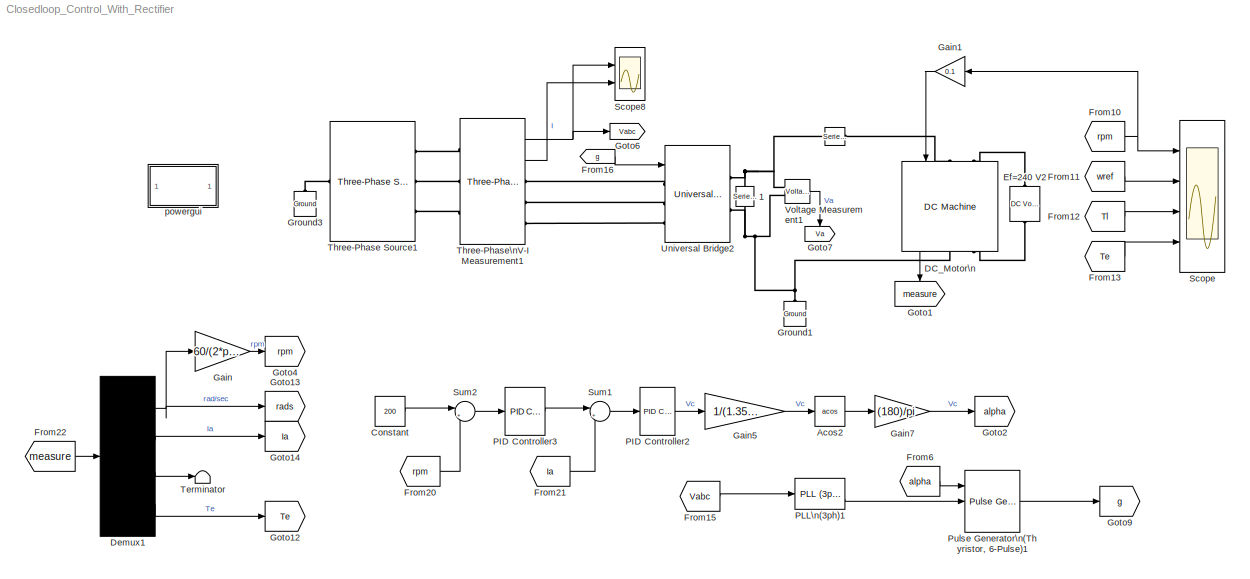
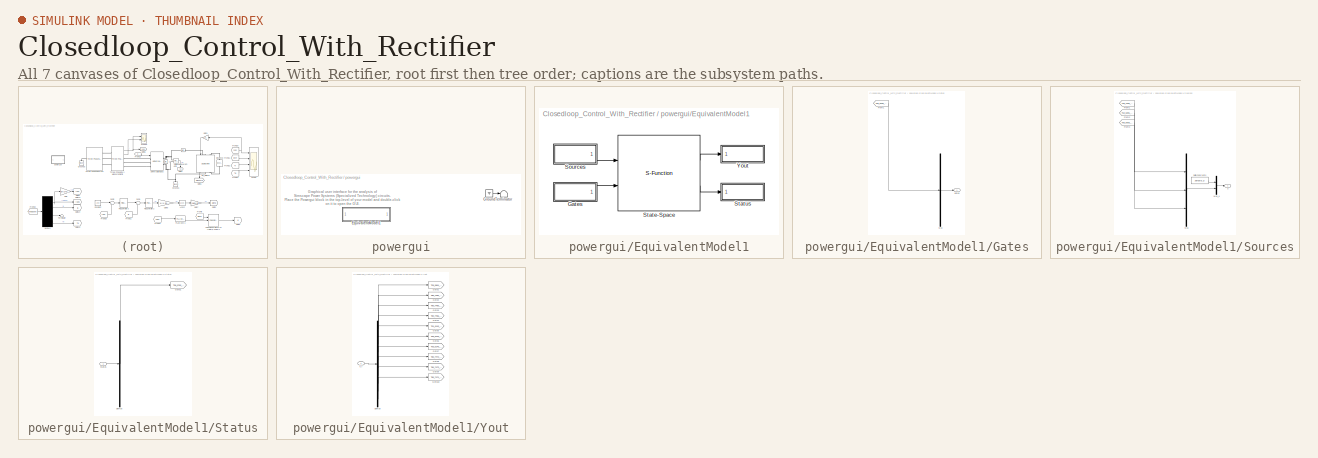
[diagram: thumbnail index - all 7 canvases of the model, root first then tree order]
MODEL Closedloop_Control_With_Rectifier
KIND model
BLOCK [Reference]      REF=powerlib/Elements/Series RLC Branch
  BranchType = RL
  Capacitance = 1e-6
  Inductance = 100e-3
  InitialCurrent = 0
  InitialVoltage = 0
  LConnTagsString = __new0
  Measurements = None
  Ports = [0, 0, 0, 0, 0, 1, 1]
  RConnTagsString = __new0
  Resistance = 0.001
  SID = 82
  SetiL0 = off
  Setx0 = off
  SourceBlock = powerlib/Elements/Series RLC Branch
  SourceType = Series RLC Branch
BLOCK [Reference]    1  REF=powerlib/Elements/Series RLC Branch
  BranchType = RC
  Capacitance = 800e-6
  Inductance = 100e-3
  InitialCurrent = 0
  InitialVoltage = 0
  LConnTagsString = __new0
  Measurements = None
  Ports = [0, 0, 0, 0, 0, 1, 1]
  RConnTagsString = __new0
  Resistance = 0.001
  SID = 83
  SetiL0 = off
  Setx0 = off
  SourceBlock = powerlib/Elements/Series RLC Branch
  SourceType = Series RLC Branch
BLOCK [Trigonometry] Acos2
  Operator = acos
  Ports = [1, 1]
  SID = 160
BLOCK [Constant] Constant
  SID = 225
  Value = 200
BLOCK [Reference] DC_Motor\n  REF=powerlib/Machines/DC Machine
  AttributesFormatString = \\n
  Bm = 0.002953
  FieldType = Wound
  Ifinit = 1.06685633001422
  J = 0.02215
  Ke = 1.8
  Kt = 1.8
  Laf = 0.9483
  MachineConstant = Torque constant (N.m/A)
  MeasurementBus = off
  MechanicalLoad = Torque TL
  Ports = [1, 1, 0, 0, 0, 2, 2]
  PresetModel = 01: 5HP 240V 1750RPM Field:300V
  RLa = [2.581 0.028]
  RLf = [281.2 156]
  RTWMemSecDataConstants = Inherit from model
  RTWMemSecDataInternal = Inherit from model
  RTWMemSecDataParameters = Inherit from model
  RTWMemSecFuncExecute = Inherit from model
  RTWMemSecFuncInitTerm = Inherit from model
  SID = 84
  ShowDetailedParameters = on
  SourceBlock = powerlib/Machines/DC Machine
  SourceType = DC machine
  Tf = 0.5161
  TsBlock = -1
  TsPowergui = 0
  w0 = 0
BLOCK [Demux] Demux1
  DisplayOption = none
  Ports = [1, 4]
  SID = 162
BLOCK [Reference] Ef=240 V2  REF=powerlib/Electrical Sources/DC Voltage Source
  Amplitude = 300
  AttributesFormatString = \\n
  Description = source block
  Measurements = None
  Ports = [0, 0, 0, 0, 0, 1, 1]
  RTWMemSecDataConstants = Inherit from model
  RTWMemSecDataInternal = Inherit from model
  RTWMemSecDataParameters = Inherit from model
  RTWMemSecFuncExecute = Inherit from model
  RTWMemSecFuncInitTerm = Inherit from model
  SID = 85
  SourceBlock = powerlib/Electrical Sources/DC Voltage Source
  SourceType = DC Voltage Source
BLOCK [From] From10
  GotoTag = rpm
  SID = 166
BLOCK [From] From11
  GotoTag = wref
  SID = 167
BLOCK [From] From12
  GotoTag = Tl
  SID = 168
BLOCK [From] From13
  GotoTag = Te
  SID = 169
BLOCK [From] From15
  GotoTag = Vabc
  SID = 141
BLOCK [From] From16
  GotoTag = g
  SID = 87
BLOCK [From] From20
  GotoTag = rpm
  SID = 175
BLOCK [From] From21
  GotoTag = Ia
  SID = 176
BLOCK [From] From22
  GotoTag = measure
  SID = 177
BLOCK [From] From6
  GotoTag = alpha
  SID = 142
BLOCK [Gain] Gain
  Gain = 60/(2*pi)
  SID = 182
BLOCK [Gain] Gain1
  Gain = 0.1
  SID = 224
BLOCK [Gain] Gain5
  Gain = 1/(1.35*230)
  SID = 183
BLOCK [Gain] Gain7
  Gain = (180)/pi
  SID = 185
BLOCK [Goto] Goto1
  GotoTag = measure
  SID = 223
BLOCK [Goto] Goto12
  GotoTag = Te
  SID = 189
BLOCK [Goto] Goto13
  GotoTag = rads
  SID = 190
BLOCK [Goto] Goto14
  GotoTag = Ia
  SID = 191
BLOCK [Goto] Goto2
  GotoTag = alpha
  SID = 186
BLOCK [Goto] Goto4
  GotoTag = rpm
  SID = 187
BLOCK [Goto] Goto6
  GotoTag = Vabc
  SID = 90
BLOCK [Goto] Goto7
  GotoTag = Va
  SID = 91
BLOCK [Goto] Goto9
  GotoTag = g
  SID = 143
BLOCK [Reference] Ground1  REF=powerlib/Elements/Ground
  LConnTagsString = a
  Ports = [0, 0, 0, 0, 0, 1]
  SID = 93
  SourceBlock = powerlib/Elements/Ground
  SourceType = Ground
BLOCK [Reference] Ground3  REF=powerlib/Elements/Ground
  LConnTagsString = a
  Ports = [0, 0, 0, 0, 0, 1]
  SID = 94
  SourceBlock = powerlib/Elements/Ground
  SourceType = Ground
BLOCK [Reference] PID Controller2  REF=simulink/Continuous/PID Controller
  AntiWindupMode = back-calculation
  Controller = PI
  ControllerParametersSource = internal
  D = 0
  DGainOutDataTypeStr = Inherit: Inherit via internal rule
  DOutMax = []
  DOutMin = []
  DParamDataTypeStr = Inherit: Inherit via internal rule
  DParamMax = []
  DParamMin = []
  DProdOutDataTypeStr = Inherit: Inherit via internal rule
  DifferentiatorICPrevScaledInput = 0
  DifferentiatorOutDataTypeStr = Inherit: Inherit via internal rule
  DifferentiatorOutMax = []
  DifferentiatorOutMin = []
  ExternalReset = none
  FilterContinuousStateAttributes = ''
  FilterOutDataTypeStr = Inherit: Inherit via internal rule
  FilterOutMax = []
  FilterOutMin = []
  FilterRTWStateStorageClass = Auto
  FilterStateMustResolveToSignalObject = off
  Form = Ideal
  I = 50
  IGainOutDataTypeStr = Inherit: Inherit via internal rule
  IOutMax = []
  IOutMin = []
  IParamDataTypeStr = Inherit: Inherit via internal rule
  IParamMax = []
  IParamMin = []
  IProdOutDataTypeStr = Inherit: Inherit via internal rule
  IgnoreLimit = off
  InitialConditionForFilter = 0
  InitialConditionForIntegrator = 0
  InitialConditionSource = internal
  IntegratorContinuousStateAttributes = ''
  IntegratorMethod = Forward Euler
  IntegratorOutDataTypeStr = Inherit: Inherit via internal rule
  IntegratorOutMax = []
  IntegratorOutMin = []
  IntegratorRTWStateStorageClass = Auto
  IntegratorStateMustResolveToSignalObject = off
  Kb = 1
  KbOutDataTypeStr = Inherit: Inherit via internal rule
  KbOutMax = []
  KbOutMin = []
  KbParamDataTypeStr = Inherit: Inherit via internal rule
  KbParamMax = []
  KbParamMin = []
  Kt = 1
  KtOutDataTypeStr = Inherit: Inherit via internal rule
  KtOutMax = []
  KtOutMin = []
  KtParamDataTypeStr = Inherit: Inherit via internal rule
  KtParamMax = []
  KtParamMin = []
  LimitOutput = on
  LinearizeAsGain = on
  LockScale = off
  LowerSaturationLimit = -300
  N = 100
  NGainOutDataTypeStr = Inherit: Inherit via internal rule
  NOutMax = []
  NOutMin = []
  NParamDataTypeStr = Inherit: Inherit via internal rule
  NParamMax = []
  NParamMin = []
  NProdOutDataTypeStr = Inherit: Inherit via internal rule
  P = 20
  PGainOutDataTypeStr = Inherit: Inherit via internal rule
  POutMax = []
  POutMin = []
  PParamDataTypeStr = Inherit: Inherit via internal rule
  PParamMax = []
  PParamMin = []
  PProdOutDataTypeStr = Inherit: Inherit via internal rule
  Ports = [1, 1]
  RTWMemSecDataConstants = Inherit from model
  RTWMemSecDataInternal = Inherit from model
  RTWMemSecDataParameters = Inherit from model
  RTWMemSecFuncExecute = Inherit from model
  RTWMemSecFuncInitTerm = Inherit from model
  RndMeth = Floor
  SID = 199
  SampleTime = 2.000000000000000e-04
  SaturateOnIntegerOverflow = off
  SaturationOutDataTypeStr = Inherit: Same as input
  SaturationOutMax = []
  SaturationOutMin = []
  SourceBlock = simulink/Continuous/PID Controller
  SourceType = PID 1dof
  SumAccumDataTypeStr = Inherit: Inherit via internal rule
  SumDAccumDataTypeStr = Inherit: Inherit via internal rule
  SumDOutDataTypeStr = Inherit: Inherit via internal rule
  SumDOutMax = []
  SumDOutMin = []
  SumI1AccumDataTypeStr = Inherit: Inherit via internal rule
  SumI1OutDataTypeStr = Inherit: Inherit via internal rule
  SumI1OutMax = []
  SumI1OutMin = []
  SumI2AccumDataTypeStr = Inherit: Inherit via internal rule
  SumI2OutDataTypeStr = Inherit: Inherit via internal rule
  SumI2OutMax = []
  SumI2OutMin = []
  SumI3AccumDataTypeStr = Inherit: Inherit via internal rule
  SumI3OutDataTypeStr = Inherit: Inherit via internal rule
  SumI3OutMax = []
  SumI3OutMin = []
  SumOutDataTypeStr = Inherit: Inherit via internal rule
  SumOutMax = []
  SumOutMin = []
  TimeDomain = Discrete-time
  TrackingMode = off
  UpperSaturationLimit = 300
  UseFilter = on
  ZeroCross = on
BLOCK [Reference] PID Controller3  REF=simulink/Continuous/PID Controller
  AntiWindupMode = clamping
  Controller = PI
  ControllerParametersSource = internal
  D = 0
  DGainOutDataTypeStr = Inherit: Inherit via internal rule
  DOutMax = []
  DOutMin = []
  DParamDataTypeStr = Inherit: Inherit via internal rule
  DParamMax = []
  DParamMin = []
  DProdOutDataTypeStr = Inherit: Inherit via internal rule
  DifferentiatorICPrevScaledInput = 0
  DifferentiatorOutDataTypeStr = Inherit: Inherit via internal rule
  DifferentiatorOutMax = []
  DifferentiatorOutMin = []
  ExternalReset = none
  FilterContinuousStateAttributes = ''
  FilterOutDataTypeStr = Inherit: Inherit via internal rule
  FilterOutMax = []
  FilterOutMin = []
  FilterRTWStateStorageClass = Auto
  FilterStateMustResolveToSignalObject = off
  Form = Ideal
  I = 25
  IGainOutDataTypeStr = Inherit: Inherit via internal rule
  IOutMax = []
  IOutMin = []
  IParamDataTypeStr = Inherit: Inherit via internal rule
  IParamMax = []
  IParamMin = []
  IProdOutDataTypeStr = Inherit: Inherit via internal rule
  IgnoreLimit = off
  InitialConditionForFilter = 0
  InitialConditionForIntegrator = 0
  InitialConditionSource = internal
  IntegratorContinuousStateAttributes = ''
  IntegratorMethod = Forward Euler
  IntegratorOutDataTypeStr = Inherit: Inherit via internal rule
  IntegratorOutMax = []
  IntegratorOutMin = []
  IntegratorRTWStateStorageClass = Auto
  IntegratorStateMustResolveToSignalObject = off
  Kb = 1
  KbOutDataTypeStr = Inherit: Inherit via internal rule
  KbOutMax = []
  KbOutMin = []
  KbParamDataTypeStr = Inherit: Inherit via internal rule
  KbParamMax = []
  KbParamMin = []
  Kt = 1
  KtOutDataTypeStr = Inherit: Inherit via internal rule
  KtOutMax = []
  KtOutMin = []
  KtParamDataTypeStr = Inherit: Inherit via internal rule
  KtParamMax = []
  KtParamMin = []
  LimitOutput = on
  LinearizeAsGain = on
  LockScale = off
  LowerSaturationLimit = 0
  N = 100
  NGainOutDataTypeStr = Inherit: Inherit via internal rule
  NOutMax = []
  NOutMin = []
  NParamDataTypeStr = Inherit: Inherit via internal rule
  NParamMax = []
  NParamMin = []
  NProdOutDataTypeStr = Inherit: Inherit via internal rule
  P = 0.1
  PGainOutDataTypeStr = Inherit: Inherit via internal rule
  POutMax = []
  POutMin = []
  PParamDataTypeStr = Inherit: Inherit via internal rule
  PParamMax = []
  PParamMin = []
  PProdOutDataTypeStr = Inherit: Inherit via internal rule
  Ports = [1, 1]
  RTWMemSecDataConstants = Inherit from model
  RTWMemSecDataInternal = Inherit from model
  RTWMemSecDataParameters = Inherit from model
  RTWMemSecFuncExecute = Inherit from model
  RTWMemSecFuncInitTerm = Inherit from model
  RndMeth = Floor
  SID = 200
  SampleTime = 2.000000000000000e-04
  SaturateOnIntegerOverflow = off
  SaturationOutDataTypeStr = Inherit: Same as input
  SaturationOutMax = []
  SaturationOutMin = []
  SourceBlock = simulink/Continuous/PID Controller
  SourceType = PID 1dof
  SumAccumDataTypeStr = Inherit: Inherit via internal rule
  SumDAccumDataTypeStr = Inherit: Inherit via internal rule
  SumDOutDataTypeStr = Inherit: Inherit via internal rule
  SumDOutMax = []
  SumDOutMin = []
  SumI1AccumDataTypeStr = Inherit: Inherit via internal rule
  SumI1OutDataTypeStr = Inherit: Inherit via internal rule
  SumI1OutMax = []
  SumI1OutMin = []
  SumI2AccumDataTypeStr = Inherit: Inherit via internal rule
  SumI2OutDataTypeStr = Inherit: Inherit via internal rule
  SumI2OutMax = []
  SumI2OutMin = []
  SumI3AccumDataTypeStr = Inherit: Inherit via internal rule
  SumI3OutDataTypeStr = Inherit: Inherit via internal rule
  SumI3OutMax = []
  SumI3OutMin = []
  SumOutDataTypeStr = Inherit: Inherit via internal rule
  SumOutMax = []
  SumOutMin = []
  TimeDomain = Discrete-time
  TrackingMode = off
  UpperSaturationLimit = 30
  UseFilter = on
  ZeroCross = on
BLOCK [Reference] PLL\n(3ph)1  REF=powerlib_meascontrol/PLL/PLL (3ph)
  AGC = on
  FilterCutOffFreq = 25
  Fmin = 45
  MaxRateChangeFreq = 12
  ParK = [180, 3200, 1]
  Par_Init = [0, 60]
  Ports = [1, 2]
  RTWMemSecDataConstants = Inherit from model
  RTWMemSecDataInternal = Inherit from model
  RTWMemSecDataParameters = Inherit from model
  RTWMemSecFuncExecute = Inherit from model
  RTWMemSecFuncInitTerm = Inherit from model
  SID = 144
  SourceBlock = powerlib_meascontrol/PLL/PLL (3ph)
  SourceType = PLL (3ph)
  TcD = 1e-4
  Ts = 0
BLOCK [Reference] Pulse Generator\n(Thyristor, 6-Pulse)1  REF=powerlib_meascontrol/Pulse & Signal Generators/Pulse Generator (Thyristor, 12-Pulse)
  Delta = D1 (lagging)
  Double_Pulse = off
  GenType = 6-pulse
  Ports = [3, 1]
  RTWMemSecDataConstants = Inherit from model
  RTWMemSecDataInternal = Inherit from model
  RTWMemSecDataParameters = Inherit from model
  RTWMemSecFuncExecute = Inherit from model
  RTWMemSecFuncInitTerm = Inherit from model
  SID = 145
  SourceBlock = powerlib_meascontrol/Pulse & Signal Generators/Pulse Generator (Thyristor, 12-Pulse)
  SourceType = Pulse Generator (Thyristor)
  Ts = 0
  pwidth = 60
BLOCK [Scope] Scope
  Floating = off
  NumInputPorts = 4
  Ports = [4]
  SID = 203
  ScopeSpecificationString = Simulink.scopes.TimeScopeBlockCfg('CurrentConfiguration', extmgr.ConfigurationSet(extmgr.Configuration('Core','General UI',true),extmgr.Configuration('Core','Source UI',true),extmgr.Configuration('Sources','WiredSimulink',true,'DataLoggingVariableName','ScopeData1'),extmgr.Configuration('Visuals','Time Domain',true,'SerializedDisplays',{struct('MinYLimReal','-25.03046','MaxYLimReal','225.25185','Y...<+3484ch>
BLOCK [Scope] Scope8
  Floating = off
  NumInputPorts = 2
  Ports = [2]
  SID = 96
  ScopeSpecificationString = Simulink.scopes.TimeScopeBlockCfg('CurrentConfiguration', extmgr.ConfigurationSet(extmgr.Configuration('Core','General UI',true,'FigureColor',[1 1 1]),extmgr.Configuration('Core','Source UI',true),extmgr.Configuration('Sources','WiredSimulink',true,'DataLoggingVariableName','ScopeData2'),extmgr.Configuration('Visuals','Time Domain',true,'SerializedDisplays',{struct('MinYLimReal','-406.10499','MaxY...<+2914ch>
BLOCK [Sum] Sum1
  Inputs = |+-
  Ports = [2, 1]
  SID = 214
BLOCK [Sum] Sum2
  Inputs = |+-
  Ports = [2, 1]
  SID = 215
BLOCK [Terminator] Terminator
  SID = 217
BLOCK [Reference] Three-Phase Source1  REF=powerlib/Electrical Sources/Three-Phase Source
  BaseVoltage = 25e3
  BusType = swing
  Frequency = 60
  Inductance = 16.58e-3
  InternalConnection = Yn
  NonIdealSource = off
  PhaseAngle = 0
  PhaseAngles_phases = [0 -120 +120]
  Ports = [0, 0, 0, 0, 0, 1, 3]
  Pref = 10e3
  Prefabc = [10e3, 10e3, 10e3]
  Qmax = inf
  Qmin = -inf
  Qref = 0
  Qrefabc = [0, 0, 0]
  RTWMemSecDataConstants = Inherit from model
  RTWMemSecDataInternal = Inherit from model
  RTWMemSecDataParameters = Inherit from model
  RTWMemSecFuncExecute = Inherit from model
  RTWMemSecFuncInitTerm = Inherit from model
  Resistance = 0.8929
  SID = 100
  ShortCircuitLevel = 100e6
  SourceBlock = powerlib/Electrical Sources/Three-Phase Source
  SourceType = Three-Phase Source
  SpecifyImpedance = off
  Voltage = 230*1.73
  VoltagePhases = off
  Voltage_phases = [25e3 25e3 25e3]/sqrt(3)
  XRratio = 7
BLOCK [Reference] Three-Phase\nV-I Measurement1  REF=powerlib/Measurements/Three-Phase V-I Measurement
  CurrentMeasurement = yes
  Ipu = off
  LabelI = Iabc
  LabelV = Vabc
  OutputType = Complex
  PSBequivalent = 0
  Pbase = 100e6
  PhasorSimulation = off
  Ports = [0, 2, 0, 0, 0, 3, 3]
  RTWMemSecDataConstants = Inherit from model
  RTWMemSecDataInternal = Inherit from model
  RTWMemSecDataParameters = Inherit from model
  RTWMemSecFuncExecute = Inherit from model
  RTWMemSecFuncInitTerm = Inherit from model
  SID = 99
  SetLabelI = off
  SetLabelV = off
  SourceBlock = powerlib/Measurements/Three-Phase V-I Measurement
  SourceType = Three-Phase VI Measurement
  Vbase = 500e3
  VoltageMeasurement = phase-to-ground
  Vpu = off
  VpuLL = off
BLOCK [Reference] Universal Bridge2  REF=powerlib/Power Electronics/Universal Bridge
  Arms = 3
  Device = Thyristors
  ForwardVoltage = 0
  ForwardVoltages = [  0  0  ]
  GTOparameters = [ 10e-6 , 20e-6 ]
  IGBTparameters = [ 1e-6 , 2e-6 ]
  Lon = 0
  Measurements = Device voltages
  Measurements_2 = None
  Ports = [1, 0, 0, 0, 0, 3, 2]
  RTWMemSecDataConstants = Inherit from model
  RTWMemSecDataInternal = Inherit from model
  RTWMemSecDataParameters = Inherit from model
  RTWMemSecFuncExecute = Inherit from model
  RTWMemSecFuncInitTerm = Inherit from model
  Ron = 1e-3
  SID = 101
  SnubberCapacitance = inf
  SnubberResistance = 1e5
  SourceBlock = powerlib/Power Electronics/Universal Bridge
  SourceType = Universal Bridge
  converterType = Rectifier
BLOCK [Reference] Voltage Measurement1  REF=powerlib/Measurements/Voltage Measurement
  OutputType = Complex
  PSBequivalent = 0
  PhasorSimulation = off
  Ports = [0, 1, 0, 0, 0, 2]
  RTWMemSecDataConstants = Inherit from model
  RTWMemSecDataInternal = Inherit from model
  RTWMemSecDataParameters = Inherit from model
  RTWMemSecFuncExecute = Inherit from model
  RTWMemSecFuncInitTerm = Inherit from model
  SID = 102
  SourceBlock = powerlib/Measurements/Voltage Measurement
  SourceType = Voltage Measurement
  UserDataPersistent = on
BLOCK [SubSystem] powergui
  AncestorBlock = sps_lib/powergui
  DialogController = POWERSYS.PowerSysDialog
  InitFcn = powergui( 'InitFcn_Callback' , gcb , 0 , [ ] );
  OpenFcn = sps_rtmsupport('OpenFcn',gcbh)
  Ports = []
  PreSaveFcn = powergui( 'PreSaveFcn_Callback' , gcb , [ ] , [ ] );
  Priority = 1
  SID = 57
BLOCK [SubSystem] powergui/EquivalentModel1
  Ports = []
  SID = 57:224
BLOCK [SubSystem] powergui/EquivalentModel1/Gates
  Ports = [0, 1]
  SID = 57:225
BLOCK [From] powergui/EquivalentModel1/Gates/From1
  GotoTag = T56_5530_4641120505062
  SID = 57:241
  TagVisibility = global
BLOCK [Mux] powergui/EquivalentModel1/Gates/Mux
  DisplayOption = bar
  Inputs = 1
  Ports = [1, 1]
  SID = 57:226
BLOCK [Outport] powergui/EquivalentModel1/Gates/gates
  SID = 57:227
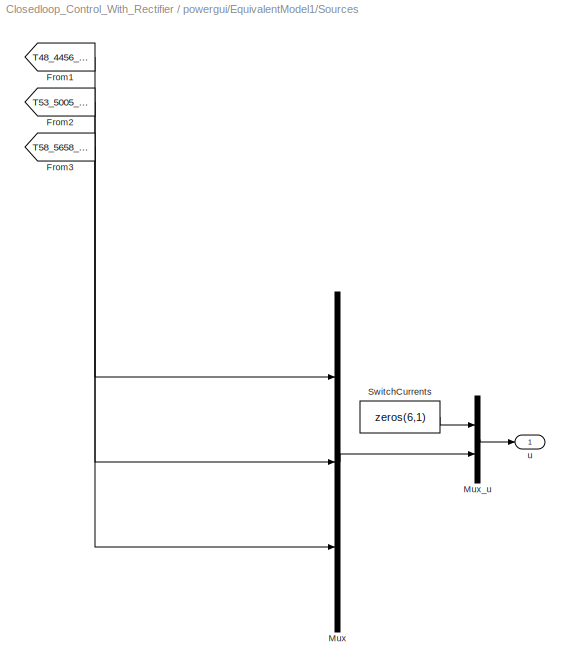
BLOCK [SubSystem] powergui/EquivalentModel1/Sources
  Ports = [0, 1]
  SID = 57:228
BLOCK [From] powergui/EquivalentModel1/Sources/From1
  GotoTag = T48_4456_2689905929996
  SID = 57:252
  TagVisibility = global
BLOCK [From] powergui/EquivalentModel1/Sources/From2
  GotoTag = T53_5005_3661074551284
  SID = 57:253
  TagVisibility = global
BLOCK [From] powergui/EquivalentModel1/Sources/From3
  GotoTag = T58_5658_4967268415148
  SID = 57:254
  TagVisibility = global
BLOCK [Mux] powergui/EquivalentModel1/Sources/Mux
  DisplayOption = bar
  Inputs = [1 1 3]
  Ports = [3, 1]
  SID = 57:229
BLOCK [Mux] powergui/EquivalentModel1/Sources/Mux_u
  DisplayOption = bar
  Inputs = [6 5]
  Ports = [2, 1]
  SID = 57:230
BLOCK [Constant] powergui/EquivalentModel1/Sources/SwitchCurrents
  SID = 57:231
  Value = zeros(6,1)
BLOCK [Outport] powergui/EquivalentModel1/Sources/u
  SID = 57:232
BLOCK [S-Function] powergui/EquivalentModel1/State-Space
  EnableBusSupport = off
  FunctionName = sfun_spssw_discc
  Parameters = S.Ts,S.A, S.B, S.C, S.D, S.x0, S.EnableUseOfTLC,S.SwitchResistance ,S.SwitchType, S.SwitchGateInitialValue, S.OutputsToResetToZero, S.TBEON,S.SaveMatrices,S.BufferSize
  Ports = [2, 2]
  SFunctionDeploymentMode = off
  SID = 57:233
BLOCK [SubSystem] powergui/EquivalentModel1/Status
  Ports = [1]
  SID = 57:234
BLOCK [Demux] powergui/EquivalentModel1/Status/Demux
  Outputs = 1
  Ports = [1, 1]
  SID = 57:236
BLOCK [Goto] powergui/EquivalentModel1/Status/Goto1
  GotoTag = T58_5765_5329011196999
  SID = 57:240
  TagVisibility = global
BLOCK [Inport] powergui/EquivalentModel1/Status/status
  SID = 57:235
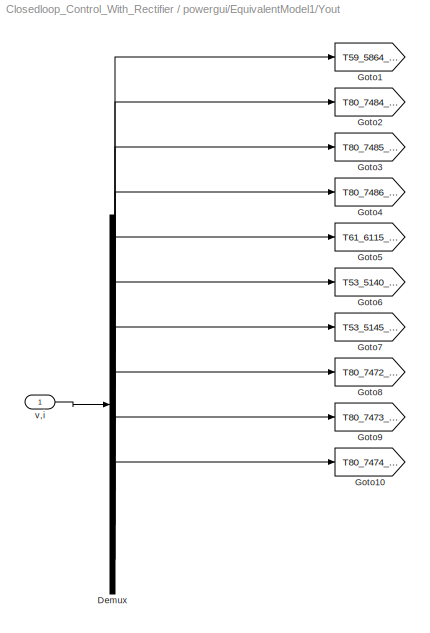
BLOCK [SubSystem] powergui/EquivalentModel1/Yout
  Ports = [1]
  SID = 57:237
BLOCK [Demux] powergui/EquivalentModel1/Yout/Demux
  Outputs = [6 1 1 1 1 1 1 1 1 1]
  Ports = [1, 10]
  SID = 57:239
BLOCK [Goto] powergui/EquivalentModel1/Yout/Goto1
  GotoTag = T59_5864_5445395332186
  SID = 57:242
  TagVisibility = global
BLOCK [Goto] powergui/EquivalentModel1/Yout/Goto10
  GotoTag = T80_7474_9364818321209
  SID = 57:251
  TagVisibility = global
BLOCK [Goto] powergui/EquivalentModel1/Yout/Goto2
  GotoTag = T80_7484_9425576871114
  SID = 57:243
  TagVisibility = global
BLOCK [Goto] powergui/EquivalentModel1/Yout/Goto3
  GotoTag = T80_7485_9428865901315
  SID = 57:244
  TagVisibility = global
BLOCK [Goto] powergui/EquivalentModel1/Yout/Goto4
  GotoTag = T80_7486_9432372553766
  SID = 57:245
  TagVisibility = global
BLOCK [Goto] powergui/EquivalentModel1/Yout/Goto5
  GotoTag = T61_6115_6160184794142
  SID = 57:246
  TagVisibility = global
BLOCK [Goto] powergui/EquivalentModel1/Yout/Goto6
  GotoTag = T53_5140_4399796610602
  SID = 57:247
  TagVisibility = global
BLOCK [Goto] powergui/EquivalentModel1/Yout/Goto7
  GotoTag = T53_5145_4408224884913
  SID = 57:248
  TagVisibility = global
BLOCK [Goto] powergui/EquivalentModel1/Yout/Goto8
  GotoTag = T80_7472_9357958367848
  SID = 57:249
  TagVisibility = global
BLOCK [Goto] powergui/EquivalentModel1/Yout/Goto9
  GotoTag = T80_7473_9361279533403
  SID = 57:250
  TagVisibility = global
BLOCK [Inport] powergui/EquivalentModel1/Yout/v,i
  SID = 57:238
BLOCK [Ground] powergui/Ground
  SID = 57:55
BLOCK [Terminator] powergui/Terminator
  SID = 57:56
ANNOTATION powergui: Graphical user interface for the analysis of \nSimscape Power Systems (Specialized Technology) circuits. \nPlace the Powergui block in the top-level of your model and double-click\non it to open the GUI.
LINE Acos2:1 -> Gain7:1
LINE Constant:1 -> Sum2:1
LINE DC_Motor\n:1 -> Goto1:1
NET Demux1:1 -> Gain:1, Goto13:1
LINE Demux1:2 -> Goto14:1
LINE Demux1:3 -> Terminator:1
LINE Demux1:4 -> Goto12:1
NET From10:1 -> Gain1:1, Scope:1
LINE From11:1 -> Scope:2
LINE From12:1 -> Scope:3
LINE From13:1 -> Scope:4
LINE From15:1 -> PLL\n(3ph)1:1
LINE From16:1 -> Universal Bridge2:1
LINE From20:1 -> Sum2:2
LINE From21:1 -> Sum1:2
LINE From22:1 -> Demux1:1
LINE From6:1 -> Pulse Generator\n(Thyristor, 6-Pulse)1:1
LINE Gain1:1 -> DC_Motor\n:1
LINE Gain5:1 -> Acos2:1
LINE Gain7:1 -> Goto2:1
LINE Gain:1 -> Goto4:1
LINE PID Controller2:1 -> Gain5:1
LINE PID Controller3:1 -> Sum1:1
LINE PLL\n(3ph)1:2 -> Pulse Generator\n(Thyristor, 6-Pulse)1:2
LINE Pulse Generator\n(Thyristor, 6-Pulse)1:1 -> Goto9:1
LINE Sum1:1 -> PID Controller2:1
LINE Sum2:1 -> PID Controller3:1
NET Three-Phase\nV-I Measurement1:1 -> Goto6:1, Scope8:1
LINE Three-Phase\nV-I Measurement1:2 -> Scope8:2
LINE Voltage Measurement1:1 -> Goto7:1
LINE powergui/EquivalentModel1/Gates/From1:1 -> powergui/EquivalentModel1/Gates/Mux:1
LINE powergui/EquivalentModel1/Gates/Mux:1 -> powergui/EquivalentModel1/Gates/gates:1
LINE powergui/EquivalentModel1/Gates:1 -> powergui/EquivalentModel1/State-Space:2
LINE powergui/EquivalentModel1/Sources/From1:1 -> powergui/EquivalentModel1/Sources/Mux:1
LINE powergui/EquivalentModel1/Sources/From2:1 -> powergui/EquivalentModel1/Sources/Mux:2
LINE powergui/EquivalentModel1/Sources/From3:1 -> powergui/EquivalentModel1/Sources/Mux:3
LINE powergui/EquivalentModel1/Sources/Mux:1 -> powergui/EquivalentModel1/Sources/Mux_u:2
LINE powergui/EquivalentModel1/Sources/Mux_u:1 -> powergui/EquivalentModel1/Sources/u:1
LINE powergui/EquivalentModel1/Sources/SwitchCurrents:1 -> powergui/EquivalentModel1/Sources/Mux_u:1
LINE powergui/EquivalentModel1/Sources:1 -> powergui/EquivalentModel1/State-Space:1
LINE powergui/EquivalentModel1/State-Space:1 -> powergui/EquivalentModel1/Yout:1
LINE powergui/EquivalentModel1/State-Space:2 -> powergui/EquivalentModel1/Status:1
LINE powergui/EquivalentModel1/Status/Demux:1 -> powergui/EquivalentModel1/Status/Goto1:1
LINE powergui/EquivalentModel1/Status/status:1 -> powergui/EquivalentModel1/Status/Demux:1
LINE powergui/EquivalentModel1/Yout/Demux:1 -> powergui/EquivalentModel1/Yout/Goto1:1
LINE powergui/EquivalentModel1/Yout/Demux:10 -> powergui/EquivalentModel1/Yout/Goto10:1
LINE powergui/EquivalentModel1/Yout/Demux:2 -> powergui/EquivalentModel1/Yout/Goto2:1
LINE powergui/EquivalentModel1/Yout/Demux:3 -> powergui/EquivalentModel1/Yout/Goto3:1
LINE powergui/EquivalentModel1/Yout/Demux:4 -> powergui/EquivalentModel1/Yout/Goto4:1
LINE powergui/EquivalentModel1/Yout/Demux:5 -> powergui/EquivalentModel1/Yout/Goto5:1
LINE powergui/EquivalentModel1/Yout/Demux:6 -> powergui/EquivalentModel1/Yout/Goto6:1
LINE powergui/EquivalentModel1/Yout/Demux:7 -> powergui/EquivalentModel1/Yout/Goto7:1
LINE powergui/EquivalentModel1/Yout/Demux:8 -> powergui/EquivalentModel1/Yout/Goto8:1
LINE powergui/EquivalentModel1/Yout/Demux:9 -> powergui/EquivalentModel1/Yout/Goto9:1
LINE powergui/EquivalentModel1/Yout/v,i:1 -> powergui/EquivalentModel1/Yout/Demux:1
LINE powergui/Ground:1 -> powergui/Terminator:1
PNET net1:    1:LConn1 --    :LConn1 -- Universal Bridge2:RConn1 -- Voltage Measurement1:LConn1
PNET net2:    1:RConn1 -- DC_Motor\n:RConn1 -- Ground1:LConn1 -- Universal Bridge2:RConn2 -- Voltage Measurement1:LConn2
PLINE    :RConn1 -- DC_Motor\n:LConn1
PLINE DC_Motor\n:LConn2 -- Ef=240 V2:RConn1
PLINE DC_Motor\n:RConn2 -- Ef=240 V2:LConn1
PLINE Ground3:LConn1 -- Three-Phase Source1:LConn1
PLINE Three-Phase Source1:RConn1 -- Three-Phase\nV-I Measurement1:LConn1
PLINE Three-Phase Source1:RConn2 -- Three-Phase\nV-I Measurement1:LConn2
PLINE Three-Phase Source1:RConn3 -- Three-Phase\nV-I Measurement1:LConn3
PLINE Three-Phase\nV-I Measurement1:RConn1 -- Universal Bridge2:LConn1
PLINE Three-Phase\nV-I Measurement1:RConn2 -- Universal Bridge2:LConn2
PLINE Three-Phase\nV-I Measurement1:RConn3 -- Universal Bridge2:LConn3
note: NET lines group one-source signal fan-out (src -> all destinations, sorted); 1:1 wires keep LINE; PNET lines group multi-terminal physical nets as a canonical sorted terminal list (undirected conserving connections); 2-terminal nets keep the pairwise PLINE form
